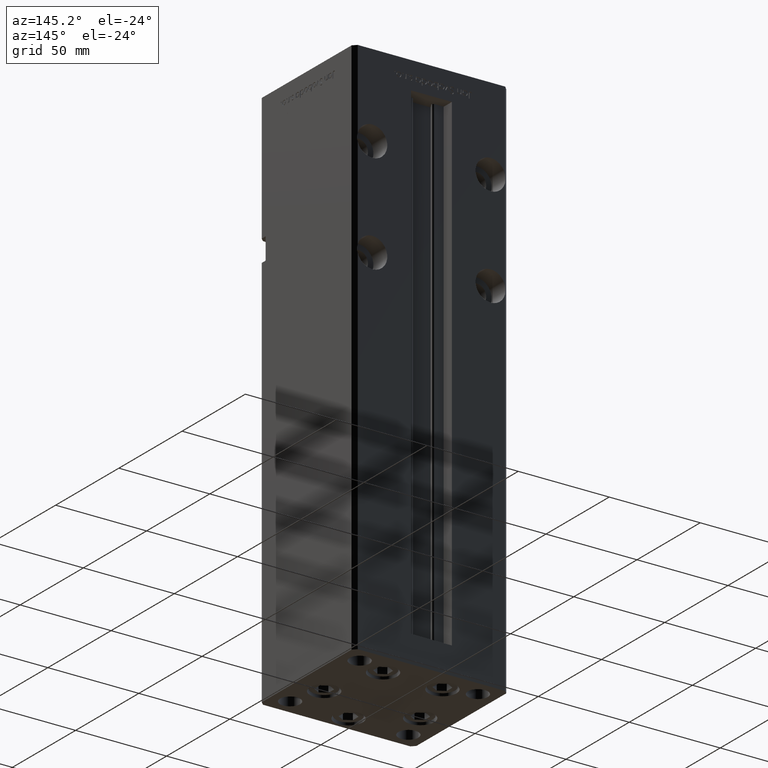
[diagram: clean part render]
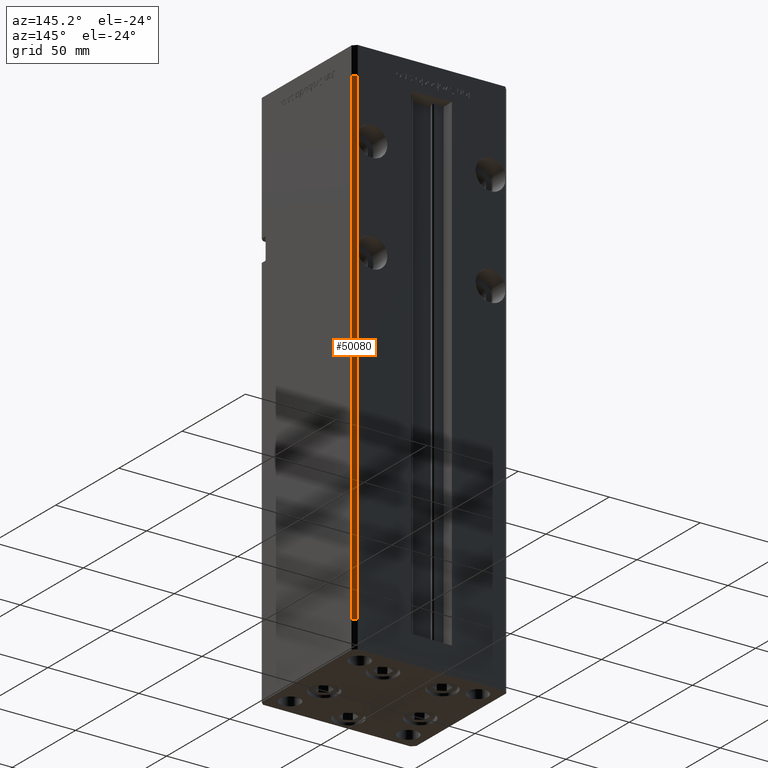
[diagram: same view with one face highlighted and labeled with its STEP entity id]
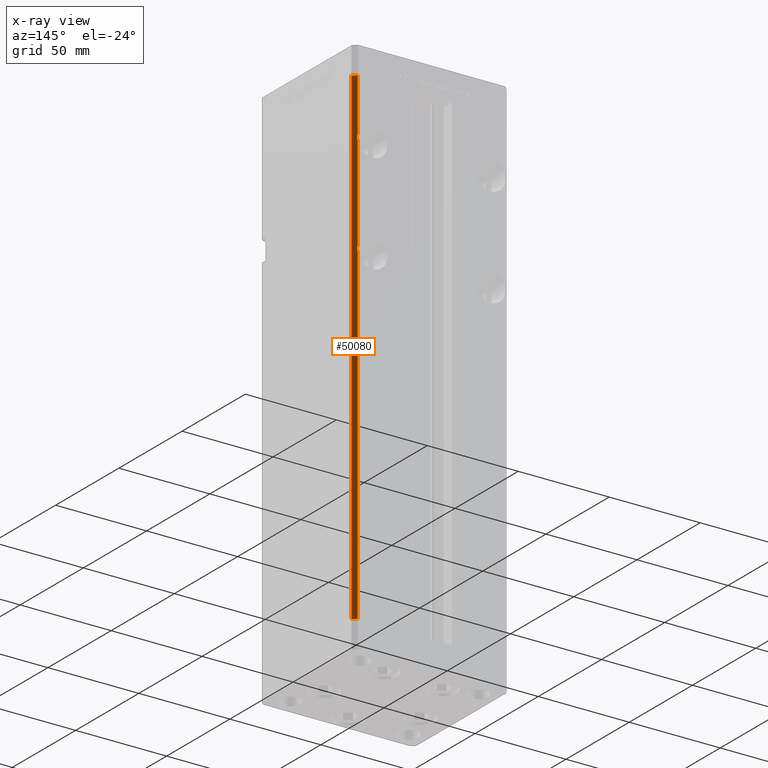
[diagram: x-ray of the same camera — body ghosted, the highlighted face saturated]
A machine part, auxiliary view. The second image highlights one B-rep face of the part: STEP entity #50080.
The next image is the same camera in x-ray: the body ghosted, the highlighted face saturated — about 0% of this face is hidden behind the body in this view.
In plain terms, the highlighted planar face has unit normal (0.7071, 0.7071, 0).
Its self-contained STEP definition (entity closure, byte-faithful):
#115 = AXIS2_PLACEMENT_3D ( 'NONE', #25746, #33807, #45653 ) ;
#424 = CARTESIAN_POINT ( 'NONE',  ( 40.83505154639176027, 37.16494845360823973, 238.6857074889016985 ) ) ;
#985 = DIRECTION ( 'NONE',  ( 0.7071067811865500152, -0.7071067811865451302, 0.000000000000000000 ) ) ;
#1117 = CARTESIAN_POINT ( 'NONE',  ( 40.50000000000000711, 37.50000000000000000, 185.0155644370746302 ) ) ;
#1164 = ORIENTED_EDGE ( 'NONE', *, *, #29002, .F. ) ;
#1424 = CARTESIAN_POINT ( 'NONE',  ( 40.50000000000000711, 37.50000000000000000, 268.5000000000000000 ) ) ;
#1541 = CARTESIAN_POINT ( 'NONE',  ( 42.50000000000001421, 35.50000000000000711, 268.5000000000000000 ) ) ;
#1768 = DIRECTION ( 'NONE',  ( -0.000000000000000000, -0.000000000000000000, -1.000000000000000000 ) ) ;
#1963 = CARTESIAN_POINT ( 'NONE',  ( 40.50000000000000711, 37.50000000000000000, 235.9844355629253698 ) ) ;
#2020 =( BOUNDED_CURVE ( )  B_SPLINE_CURVE ( 3, ( #38849, #424, #16852, #1963 ),
 .UNSPECIFIED., .F., .F. ) 
 B_SPLINE_CURVE_WITH_KNOTS ( ( 4, 4 ),
 ( 2.894783720120218895, 3.388401587059367337 ),
 .UNSPECIFIED. ) 
 CURVE ( )  GEOMETRIC_REPRESENTATION_ITEM ( )  RATIONAL_B_SPLINE_CURVE ( ( 1.000000000000000000, 0.9797979797979794458, 0.9797979797979794458, 1.000000000000000000 ) ) 
 REPRESENTATION_ITEM ( '' )  );
#2404 = EDGE_LOOP ( 'NONE', ( #38552, #19814, #28736, #4113, #18981, #2508, #1164, #5835 ) ) ;
#2508 = ORIENTED_EDGE ( 'NONE', *, *, #25135, .T. ) ;
#3677 = VERTEX_POINT ( 'NONE', #8474 ) ;
#3974 = LINE ( 'NONE', #32773, #10849 ) ;
#4113 = ORIENTED_EDGE ( 'NONE', *, *, #40036, .F. ) ;
#4769 = CARTESIAN_POINT ( 'NONE',  ( 40.50000000000000711, 37.50000000000000000, 240.0155644370746586 ) ) ;
#5075 = CARTESIAN_POINT ( 'NONE',  ( 40.50000000000000711, 37.50000000000000000, 0.000000000000000000 ) ) ;
#5250 = CARTESIAN_POINT ( 'NONE',  ( 40.83505154639175316, 37.16494845360825394, 183.6857074889016985 ) ) ;
#5835 = ORIENTED_EDGE ( 'NONE', *, *, #28481, .F. ) ;
#6778 = CARTESIAN_POINT ( 'NONE',  ( 40.50000000000000711, 37.50000000000000000, 180.9844355629254267 ) ) ;
#8041 = VERTEX_POINT ( 'NONE', #4769 ) ;
#8474 = CARTESIAN_POINT ( 'NONE',  ( 40.50000000000000711, 37.50000000000000000, 268.5000000000000000 ) ) ;
#8520 = VERTEX_POINT ( 'NONE', #6778 ) ;
#9864 = LINE ( 'NONE', #33838, #9985 ) ;
#9985 = VECTOR ( 'NONE', #50228, 1000.000000000000000 ) ;
#10374 = CARTESIAN_POINT ( 'NONE',  ( 40.50000000000000711, 37.50000000000000000, 268.5000000000000000 ) ) ;
#10849 = VECTOR ( 'NONE', #985, 1000.000000000000114 ) ;
#13592 = CARTESIAN_POINT ( 'NONE',  ( 40.50000000000000711, 37.50000000000000000, 180.9844355629254267 ) ) ;
#16816 = VERTEX_POINT ( 'NONE', #1117 ) ;
#16852 = CARTESIAN_POINT ( 'NONE',  ( 40.83505154639176027, 37.16494845360823973, 237.3142925110983299 ) ) ;
#17367 = CARTESIAN_POINT ( 'NONE',  ( 40.50000000000000711, 37.50000000000000000, 185.0155644370746302 ) ) ;
#17724 = DIRECTION ( 'NONE',  ( 0.7071067811865500152, -0.7071067811865451302, 0.000000000000000000 ) ) ;
#18707 = EDGE_CURVE ( 'NONE', #8041, #51382, #2020, .T. ) ;
#18981 = ORIENTED_EDGE ( 'NONE', *, *, #24996, .T. ) ;
#19814 = ORIENTED_EDGE ( 'NONE', *, *, #45727, .F. ) ;
#19930 =( BOUNDED_CURVE ( )  B_SPLINE_CURVE ( 3, ( #17367, #5250, #42678, #13592 ),
 .UNSPECIFIED., .F., .F. ) 
 B_SPLINE_CURVE_WITH_KNOTS ( ( 4, 4 ),
 ( 2.894783720120225556, 3.388401587059360676 ),
 .UNSPECIFIED. ) 
 CURVE ( )  GEOMETRIC_REPRESENTATION_ITEM ( )  RATIONAL_B_SPLINE_CURVE ( ( 1.000000000000000000, 0.9797979797979806671, 0.9797979797979806671, 1.000000000000000000 ) ) 
 REPRESENTATION_ITEM ( '' )  );
#20363 = CARTESIAN_POINT ( 'NONE',  ( 40.50000000000000711, 37.50000000000000000, 0.000000000000000000 ) ) ;
#21554 = VERTEX_POINT ( 'NONE', #20363 ) ;
#21776 = LINE ( 'NONE', #5075, #39379 ) ;
#24953 = PLANE ( 'NONE',  #115 ) ;
#24996 = EDGE_CURVE ( 'NONE', #3677, #53092, #3974, .T. ) ;
#25135 = EDGE_CURVE ( 'NONE', #53092, #33183, #9864, .T. ) ;
#25746 = CARTESIAN_POINT ( 'NONE',  ( 40.50000000000000711, 37.50000000000000000, 268.5000000000000000 ) ) ;
#25945 = DIRECTION ( 'NONE',  ( -0.000000000000000000, -0.000000000000000000, -1.000000000000000000 ) ) ;
#28481 = EDGE_CURVE ( 'NONE', #8520, #21554, #38649, .T. ) ;
#28736 = ORIENTED_EDGE ( 'NONE', *, *, #18707, .F. ) ;
#29002 = EDGE_CURVE ( 'NONE', #21554, #33183, #21776, .T. ) ;
#32135 = LINE ( 'NONE', #43983, #51679 ) ;
#32773 = CARTESIAN_POINT ( 'NONE',  ( 40.50000000000000711, 37.50000000000000000, 268.5000000000000000 ) ) ;
#33183 = VERTEX_POINT ( 'NONE', #41837 ) ;
#33807 = DIRECTION ( 'NONE',  ( 0.7071067811865451302, 0.7071067811865500152, -0.000000000000000000 ) ) ;
#33838 = CARTESIAN_POINT ( 'NONE',  ( 42.50000000000001421, 35.50000000000000711, 268.5000000000000000 ) ) ;
#34001 = LINE ( 'NONE', #1424, #44622 ) ;
#38552 = ORIENTED_EDGE ( 'NONE', *, *, #38937, .F. ) ;
#38649 = LINE ( 'NONE', #10374, #45315 ) ;
#38849 = CARTESIAN_POINT ( 'NONE',  ( 40.50000000000000711, 37.50000000000000000, 240.0155644370746586 ) ) ;
#38937 = EDGE_CURVE ( 'NONE', #16816, #8520, #19930, .T. ) ;
#39379 = VECTOR ( 'NONE', #17724, 1000.000000000000114 ) ;
#40036 = EDGE_CURVE ( 'NONE', #3677, #8041, #34001, .T. ) ;
#41837 = CARTESIAN_POINT ( 'NONE',  ( 42.50000000000001421, 35.50000000000000711, 0.000000000000000000 ) ) ;
#42678 = CARTESIAN_POINT ( 'NONE',  ( 40.83505154639175316, 37.16494845360825394, 182.3142925110983583 ) ) ;
#43983 = CARTESIAN_POINT ( 'NONE',  ( 40.50000000000000711, 37.50000000000000000, 268.5000000000000000 ) ) ;
#44499 = DIRECTION ( 'NONE',  ( -0.000000000000000000, -0.000000000000000000, -1.000000000000000000 ) ) ;
#44622 = VECTOR ( 'NONE', #25945, 1000.000000000000000 ) ;
#45315 = VECTOR ( 'NONE', #1768, 1000.000000000000000 ) ;
#45653 = DIRECTION ( 'NONE',  ( -0.7071067811865500152, 0.7071067811865451302, 0.000000000000000000 ) ) ;
#45727 = EDGE_CURVE ( 'NONE', #51382, #16816, #32135, .T. ) ;
#50080 = ADVANCED_FACE ( 'NONE', ( #50731 ), #24953, .T. ) ;
#50148 = CARTESIAN_POINT ( 'NONE',  ( 40.50000000000000711, 37.50000000000000000, 235.9844355629253698 ) ) ;
#50228 = DIRECTION ( 'NONE',  ( -0.000000000000000000, -0.000000000000000000, -1.000000000000000000 ) ) ;
#50731 = FACE_OUTER_BOUND ( 'NONE', #2404, .T. ) ;
#51382 = VERTEX_POINT ( 'NONE', #50148 ) ;
#51679 = VECTOR ( 'NONE', #44499, 1000.000000000000000 ) ;
#53092 = VERTEX_POINT ( 'NONE', #1541 ) ;